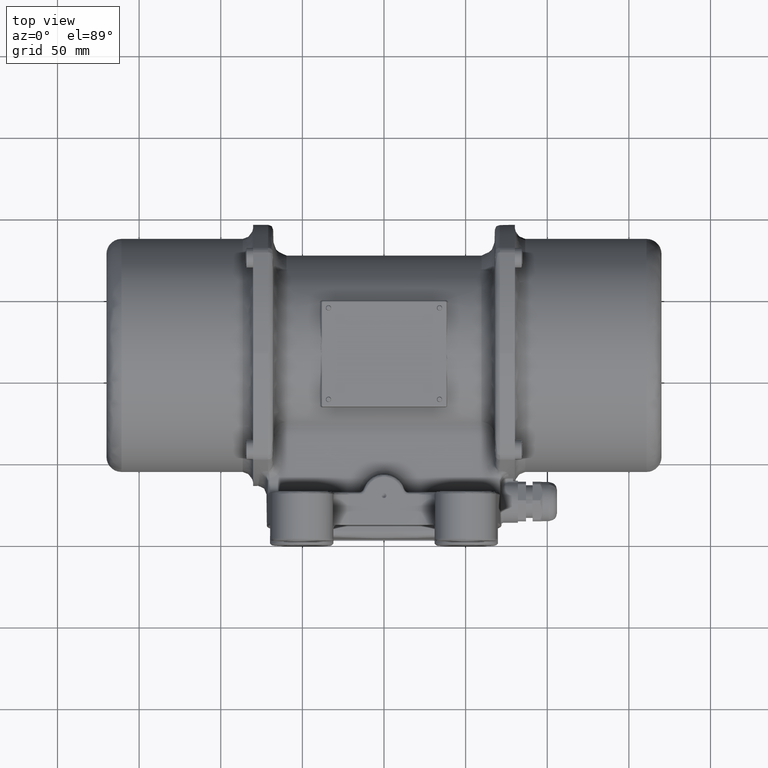
[diagram: clean part render]
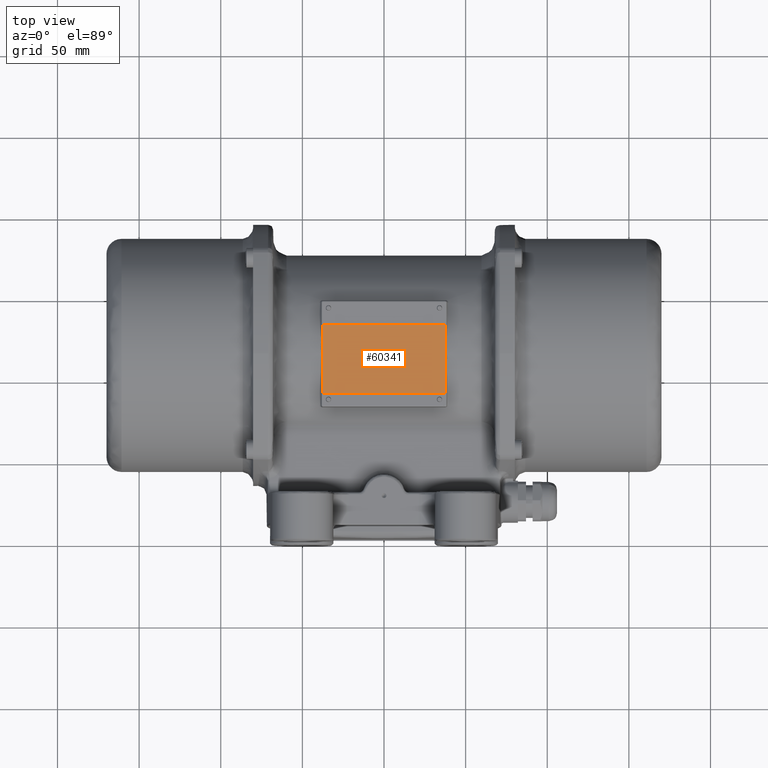
[diagram: same view with one face highlighted and labeled with its STEP entity id]
A machine part, top view. The second image highlights one B-rep face of the part: STEP entity #60341.
In plain terms, the highlighted planar face has unit normal (0, 0, 1).
Its self-contained STEP definition (entity closure, byte-faithful):
#2783 = ORIENTED_EDGE ( 'NONE', *, *, #113277, .T. ) ;
#9341 = EDGE_LOOP ( 'NONE', ( #128754, #123436, #37128, #2783 ) ) ;
#15353 = VECTOR ( 'NONE', #80167, 1000.000000000000000 ) ;
#17448 = EDGE_CURVE ( 'NONE', #69958, #121476, #110682, .T. ) ;
#30506 = CARTESIAN_POINT ( 'NONE',  ( -37.50000000000000000, 90.70000000000000300, 62.00000000000000000 ) ) ;
#35162 = LINE ( 'NONE', #131646, #81093 ) ;
#37128 = ORIENTED_EDGE ( 'NONE', *, *, #135462, .F. ) ;
#43303 = PLANE ( 'NONE',  #99757 ) ;
#45158 = CARTESIAN_POINT ( 'NONE',  ( 37.50000000000000000, 146.5000000000000000, 62.00000000000000000 ) ) ;
#55481 = CARTESIAN_POINT ( 'NONE',  ( -37.50000000000000000, 90.70000000000000300, 62.00000000000000000 ) ) ;
#57411 = DIRECTION ( 'NONE',  ( 1.101411730778923800E-016, -1.000000000000000000, 0.0000000000000000000 ) ) ;
#60341 = ADVANCED_FACE ( 'NONE', ( #83075 ), #43303, .T. ) ;
#64018 = DIRECTION ( 'NONE',  ( 1.000000000000000000, 9.251858538542969100E-017, 0.0000000000000000000 ) ) ;
#65946 = CARTESIAN_POINT ( 'NONE',  ( 37.50000000000000000, 132.8999999999999800, 62.00000000000000000 ) ) ;
#66051 = DIRECTION ( 'NONE',  ( 0.0000000000000000000, 0.0000000000000000000, 1.000000000000000000 ) ) ;
#69958 = VERTEX_POINT ( 'NONE', #132116 ) ;
#78083 = LINE ( 'NONE', #45158, #97479 ) ;
#80130 = CARTESIAN_POINT ( 'NONE',  ( -37.50000000000000000, 146.5000000000000000, 62.00000000000000000 ) ) ;
#80167 = DIRECTION ( 'NONE',  ( -1.000000000000000000, 2.312964634635745100E-017, 0.0000000000000000000 ) ) ;
#81093 = VECTOR ( 'NONE', #64018, 1000.000000000000000 ) ;
#82765 = VECTOR ( 'NONE', #57411, 1000.000000000000000 ) ;
#83075 = FACE_OUTER_BOUND ( 'NONE', #9341, .T. ) ;
#89677 = DIRECTION ( 'NONE',  ( 1.101411730778923800E-016, 1.000000000000000000, 0.0000000000000000000 ) ) ;
#97465 = VERTEX_POINT ( 'NONE', #65946 ) ;
#97479 = VECTOR ( 'NONE', #89677, 1000.000000000000000 ) ;
#99757 = AXIS2_PLACEMENT_3D ( 'NONE', #100087, #66051, #145029 ) ;
#100087 = CARTESIAN_POINT ( 'NONE',  ( -37.50000000000000000, 83.50000000000000000, 62.00000000000000000 ) ) ;
#110682 = LINE ( 'NONE', #55481, #15353 ) ;
#112779 = LINE ( 'NONE', #80130, #82765 ) ;
#112930 = CARTESIAN_POINT ( 'NONE',  ( -37.50000000000000000, 132.8999999999999800, 62.00000000000000000 ) ) ;
#113277 = EDGE_CURVE ( 'NONE', #136708, #121476, #112779, .T. ) ;
#121476 = VERTEX_POINT ( 'NONE', #30506 ) ;
#123436 = ORIENTED_EDGE ( 'NONE', *, *, #132094, .T. ) ;
#128754 = ORIENTED_EDGE ( 'NONE', *, *, #17448, .F. ) ;
#131646 = CARTESIAN_POINT ( 'NONE',  ( 37.50000000000000000, 132.8999999999999800, 62.00000000000000000 ) ) ;
#132094 = EDGE_CURVE ( 'NONE', #69958, #97465, #78083, .T. ) ;
#132116 = CARTESIAN_POINT ( 'NONE',  ( 37.50000000000000000, 90.70000000000000300, 62.00000000000000000 ) ) ;
#135462 = EDGE_CURVE ( 'NONE', #136708, #97465, #35162, .T. ) ;
#136708 = VERTEX_POINT ( 'NONE', #112930 ) ;
#145029 = DIRECTION ( 'NONE',  ( 1.000000000000000000, 0.0000000000000000000, 0.0000000000000000000 ) ) ;